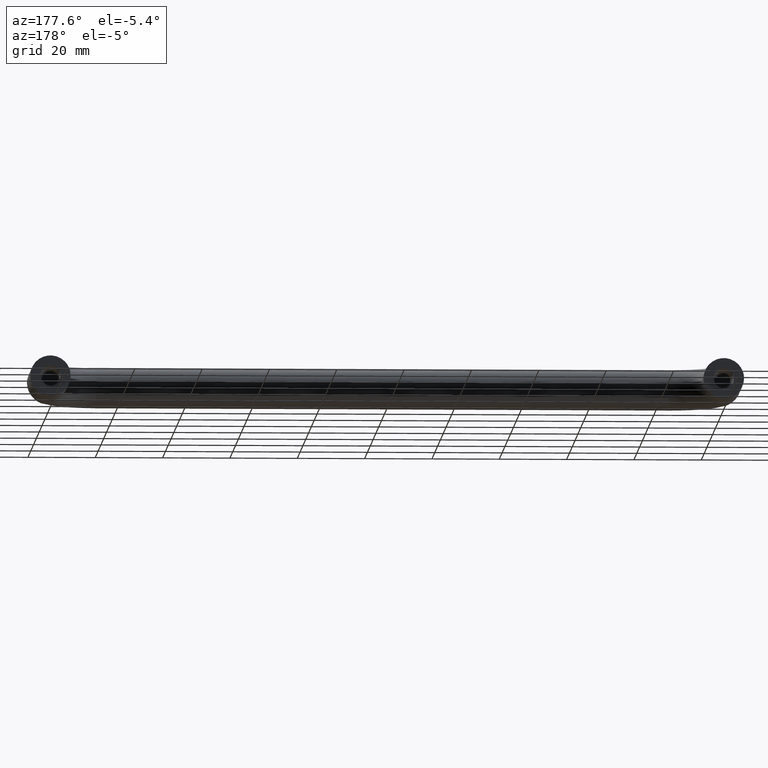
[diagram: clean part render]
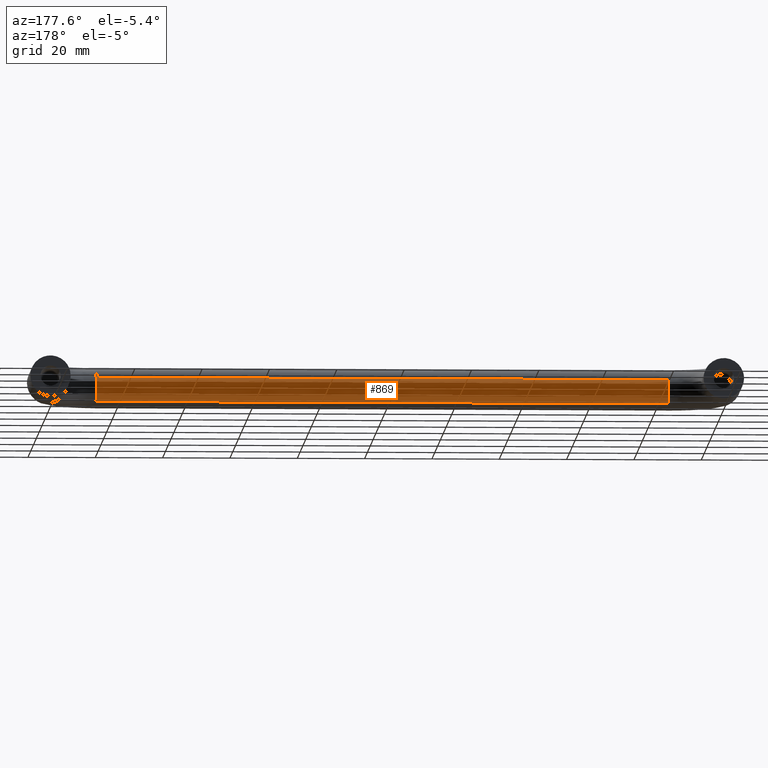
[diagram: same view with one face highlighted and labeled with its STEP entity id]
A machine part, auxiliary view. The second image highlights one B-rep face of the part: STEP entity #869.
In plain terms, the highlighted face is a freeform B-spline surface patch.
Its self-contained STEP definition (entity closure, byte-faithful):
#650=CARTESIAN_POINT('',(185.0,-33.626367044212650,2.669095138146304));
#651=VERTEX_POINT('',#650);
#669=CARTESIAN_POINT('',(14.999999999962130,-33.626367044218853,2.669095138143554));
#670=VERTEX_POINT('',#669);
#671=CARTESIAN_POINT('',(14.999999999962130,-33.626367044218853,2.669095138143554));
#672=CARTESIAN_POINT('',(185.0,-33.626367044212650,2.669095138146304));
#673=QUASI_UNIFORM_CURVE('',1,(#671,#672),.UNSPECIFIED.,.F.,.U.);
#674=EDGE_CURVE('',#670,#651,#673,.T.);
#723=CARTESIAN_POINT('',(15.0,-34.869874609136403,-4.352248184069436));
#724=VERTEX_POINT('',#723);
#740=CARTESIAN_POINT('',(184.999999999982690,-34.869872749249417,-4.352246419063802));
#741=VERTEX_POINT('',#740);
#742=CARTESIAN_POINT('',(15.0,-34.869874609136403,-4.352248184069436));
#743=CARTESIAN_POINT('',(184.999999999982690,-34.869872749249417,-4.352246419063802));
#744=QUASI_UNIFORM_CURVE('',1,(#742,#743),.UNSPECIFIED.,.F.,.U.);
#745=EDGE_CURVE('',#724,#741,#744,.T.);
#795=CARTESIAN_POINT('',(10.749999999235490,-34.869872545837481,-4.352246226073724));
#796=CARTESIAN_POINT('',(10.749999999235486,-31.654449898810537,-1.300924067032585));
#797=CARTESIAN_POINT('',(10.749999999235488,-33.626367044185031,2.669095138090656));
#798=CARTESIAN_POINT('',(189.356250001950510,-34.869872545837453,-4.352246226073724));
#799=CARTESIAN_POINT('',(189.356250001950430,-31.654449898810494,-1.300924067032585));
#800=CARTESIAN_POINT('',(189.356250001950540,-33.626367044184988,2.669095138090656));
#808=(BOUNDED_SURFACE()B_SPLINE_SURFACE(2,1,((#795,#798),(#796,#799),(#797,#800)),.UNSPECIFIED.,.F.,.F.,.U.)B_SPLINE_SURFACE_WITH_KNOTS((3,3),(2,2),(0.0,7.898692343319880),(0.0,178.606250002715090),.UNSPECIFIED.)GEOMETRIC_REPRESENTATION_ITEM()RATIONAL_B_SPLINE_SURFACE(((1.0,1.0),(0.765685424949238,0.765685424949238),(0.906274169979695,0.906274169979695)))REPRESENTATION_ITEM('')SURFACE());
#809=CARTESIAN_POINT('',(185.0,-33.0,0.0));
#810=VERTEX_POINT('',#809);
#811=CARTESIAN_POINT('',(185.0,-33.0,0.0));
#812=CARTESIAN_POINT('',(185.000000000000030,-33.000000000000007,1.408043576885577));
#813=CARTESIAN_POINT('',(185.000000000000060,-33.626367044212643,2.669095138146305));
#821=(BOUNDED_CURVE()B_SPLINE_CURVE(2,(#811,#812,#813),.UNSPECIFIED.,.F.,.U.)B_SPLINE_CURVE_WITH_KNOTS((3,3),(0.500000000000000,0.575619190625607),.UNSPECIFIED.)CURVE()GEOMETRIC_REPRESENTATION_ITEM()RATIONAL_B_SPLINE_CURVE((1.0,0.911406607414392,0.876408099965587))REPRESENTATION_ITEM(''));
#822=EDGE_CURVE('',#810,#651,#821,.T.);
#823=ORIENTED_EDGE('',*,*,#822,.F.);
#824=CARTESIAN_POINT('',(184.999999999982720,-34.869872749249431,-4.352246419063802));
#825=CARTESIAN_POINT('',(184.999999999999970,-33.0,-2.577803767915576));
#826=CARTESIAN_POINT('',(185.0,-33.0,0.0));
#834=(BOUNDED_CURVE()B_SPLINE_CURVE(2,(#824,#825,#826),.UNSPECIFIED.,.F.,.U.)B_SPLINE_CURVE_WITH_KNOTS((3,3),(0.371049512555460,0.500000000000000),.UNSPECIFIED.)CURVE()GEOMETRIC_REPRESENTATION_ITEM()RATIONAL_B_SPLINE_CURVE((0.853699662413844,0.848925106659221,1.0))REPRESENTATION_ITEM(''));
#835=EDGE_CURVE('',#741,#810,#834,.T.);
#836=ORIENTED_EDGE('',*,*,#835,.F.);
#837=ORIENTED_EDGE('',*,*,#745,.F.);
#838=CARTESIAN_POINT('',(15.0,-33.0,0.0));
#839=VERTEX_POINT('',#838);
#840=CARTESIAN_POINT('',(15.000000000000002,-34.869874609136403,-4.352248184069437));
#841=CARTESIAN_POINT('',(15.000000000000005,-32.999999999999993,-2.577805120553616));
#842=CARTESIAN_POINT('',(15.0,-33.0,0.0));
#850=(BOUNDED_CURVE()B_SPLINE_CURVE(2,(#840,#841,#842),.UNSPECIFIED.,.F.,.U.)B_SPLINE_CURVE_WITH_KNOTS((3,3),(0.371049455114185,0.500000000000000),.UNSPECIFIED.)CURVE()GEOMETRIC_REPRESENTATION_ITEM()RATIONAL_B_SPLINE_CURVE((0.853699666667547,0.848925039362580,1.0))REPRESENTATION_ITEM(''));
#851=EDGE_CURVE('',#724,#839,#850,.T.);
#852=ORIENTED_EDGE('',*,*,#851,.T.);
#853=CARTESIAN_POINT('',(15.0,-33.0,0.0));
#854=CARTESIAN_POINT('',(14.999999999999996,-33.0,1.408043576882220));
#855=CARTESIAN_POINT('',(14.999999999962126,-33.626367044218846,2.669095138143554));
#863=(BOUNDED_CURVE()B_SPLINE_CURVE(2,(#853,#854,#855),.UNSPECIFIED.,.F.,.U.)B_SPLINE_CURVE_WITH_KNOTS((3,3),(0.500000000000000,0.575619190625442),.UNSPECIFIED.)CURVE()GEOMETRIC_REPRESENTATION_ITEM()RATIONAL_B_SPLINE_CURVE((1.0,0.911406607414585,0.876408099965739))REPRESENTATION_ITEM(''));
#864=EDGE_CURVE('',#839,#670,#863,.T.);
#865=ORIENTED_EDGE('',*,*,#864,.T.);
#866=ORIENTED_EDGE('',*,*,#674,.T.);
#867=EDGE_LOOP('',(#823,#836,#837,#852,#865,#866));
#868=FACE_OUTER_BOUND('',#867,.T.);
#869=ADVANCED_FACE('',(#868),#808,.T.);